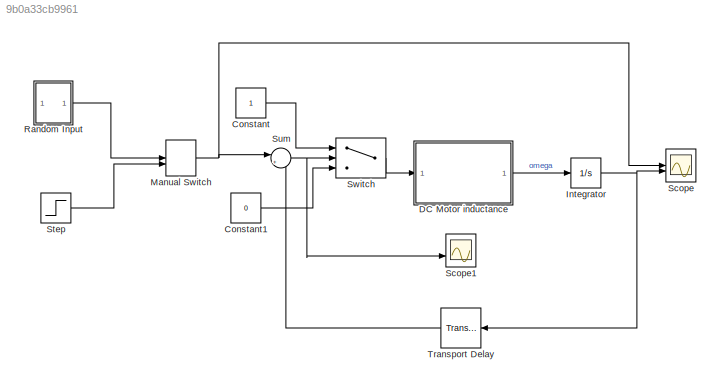
MODEL slx_9b0a33cb9961
KIND model
CONFIG AbsTol = auto
CONFIG EnableMultiTasking = off
CONFIG FixedStep = 0.1
CONFIG MaxStep = auto
CONFIG MinStep = auto
CONFIG RelTol = 1e-3
CONFIG SampleTimeConstraint = Unconstrained
CONFIG SolverName = FixedStepAuto
CONFIG StartTime = 0.0
CONFIG StopTime = 10
BLOCK [Constant] Constant
BLOCK [Constant] Constant1
  Value = 0
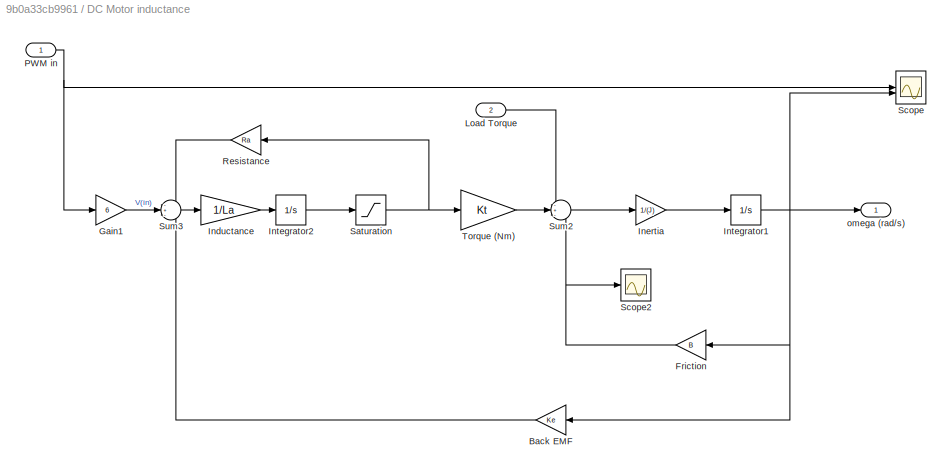
BLOCK [SubSystem] DC Motor inductance
BLOCK [Gain] DC Motor inductance/Back EMF
  Gain = Ke
  NameLocation = top
BLOCK [Gain] DC Motor inductance/Friction
  Gain = B
  NameLocation = top
BLOCK [Gain] DC Motor inductance/Gain1
  Gain = 6
BLOCK [Gain] DC Motor inductance/Inductance
  Gain = 1/La
BLOCK [Gain] DC Motor inductance/Inertia
  Gain = 1/(J)
BLOCK [Integrator] DC Motor inductance/Integrator1
BLOCK [Integrator] DC Motor inductance/Integrator2
BLOCK [Inport] DC Motor inductance/Load Torque
  Port = 2
BLOCK [Inport] DC Motor inductance/PWM in
BLOCK [Gain] DC Motor inductance/Resistance
  Gain = Ra
  NameLocation = top
BLOCK [Saturate] DC Motor inductance/Saturation
  LowerLimit = -1
  UpperLimit = 1
BLOCK [Scope] DC Motor inductance/Scope
  Floating = off
  NumInputPorts = 2
  ScopeSpecificationString = Simulink.scopes.TimeScopeBlockCfg('CurrentConfiguration', extmgr.ConfigurationSet(extmgr.Configuration('Core','General UI',true),extmgr.Configuration('Core','Source UI',true),extmgr.Configuration('Sources','WiredSimulink',true,'DataLoggingVariableName','ScopeData1'),extmgr.Configuration('Visuals','Time Domain',true,'SerializedDisplays',{struct('MinYLimReal','-0.125','MaxYLimReal','1.125','YLabelRe...<+2251ch>
BLOCK [Scope] DC Motor inductance/Scope2
  Floating = off
  NumInputPorts = 1
  ScopeSpecificationString = Simulink.scopes.TimeScopeBlockCfg('CurrentConfiguration', extmgr.ConfigurationSet(extmgr.Configuration('Core','General UI',true),extmgr.Configuration('Core','Source UI',true),extmgr.Configuration('Sources','WiredSimulink',true,'DataLoggingVariableName','ScopeData1'),extmgr.Configuration('Visuals','Time Domain',true,'SerializedDisplays',{struct('MinYLimReal','-0.00187','MaxYLimReal','0.01682','YLab...<+1544ch>
BLOCK [Sum] DC Motor inductance/Sum2
  Inputs = -+-
BLOCK [Sum] DC Motor inductance/Sum3
  Inputs = -+-
BLOCK [Gain] DC Motor inductance/Torque (Nm)
  Gain = Kt
BLOCK [Outport] DC Motor inductance/omega (rad//s)
BLOCK [Integrator] Integrator
BLOCK [ManualSwitch] Manual Switch
  CurrentSetting = 0
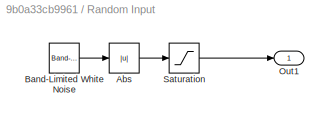
BLOCK [SubSystem] Random Input
BLOCK [Abs] Random Input/Abs
  SaturateOnIntegerOverflow = off
BLOCK [Reference] Random Input/Band-Limited White Noise  REF=simulink/Sources/Band-Limited
White Noise
  SourceBlock = simulink/Sources/Band-Limited\nWhite Noise
  SourceType = Band-Limited White Noise.
BLOCK [Outport] Random Input/Out1
BLOCK [Saturate] Random Input/Saturation
  LowerLimit = 0
  UpperLimit = 350
BLOCK [Scope] Scope
  Floating = off
  NumInputPorts = 2
  ScopeSpecificationString = Simulink.scopes.TimeScopeBlockCfg('CurrentConfiguration', extmgr.ConfigurationSet(extmgr.Configuration('Core','General UI',true),extmgr.Configuration('Core','Source UI',true),extmgr.Configuration('Sources','WiredSimulink',true,'DataLoggingVariableName','ScopeData1'),extmgr.Configuration('Visuals','Time Domain',true,'SerializedDisplays',{struct('MinYLimReal','-54812222175490685944861856718739052732...<+3959ch>
BLOCK [Scope] Scope1
  Floating = off
  NumInputPorts = 2
  ScopeSpecificationString = Simulink.scopes.TimeScopeBlockCfg('CurrentConfiguration', extmgr.ConfigurationSet(extmgr.Configuration('Core','General UI',true),extmgr.Configuration('Core','Source UI',true),extmgr.Configuration('Sources','WiredSimulink',true,'DataLoggingVariableName','ScopeData2'),extmgr.Configuration('Visuals','Time Domain',true,'SerializedDisplays',{struct('MinYLimReal','-0.125','MaxYLimReal','1.125','YLabelRe...<+2275ch>
BLOCK [Step] Step
  After = 1000
  SampleTime = 0
BLOCK [Sum] Sum
  Inputs = |+-
BLOCK [Switch] Switch
  Criteria = u2 > Threshold
  InputSameDT = off
  SaturateOnIntegerOverflow = off
BLOCK [TransportDelay] Transport Delay
  Commented = through
  DelayTime = 0.01
  NameLocation = top
LINE Constant1:1 -> Switch:3
LINE Constant:1 -> Switch:1
LINE DC Motor inductance/Back EMF:1 -> DC Motor inductance/Sum3:3
NET DC Motor inductance/Friction:1 -> DC Motor inductance/Scope2:1, DC Motor inductance/Sum2:3
LINE DC Motor inductance/Gain1:1 -> DC Motor inductance/Sum3:2
LINE DC Motor inductance/Inductance:1 -> DC Motor inductance/Integrator2:1
LINE DC Motor inductance/Inertia:1 -> DC Motor inductance/Integrator1:1
NET DC Motor inductance/Integrator1:1 -> DC Motor inductance/Back EMF:1, DC Motor inductance/Friction:1, DC Motor inductance/Scope:2, DC Motor inductance/omega (rad//s):1
LINE DC Motor inductance/Integrator2:1 -> DC Motor inductance/Saturation:1
LINE DC Motor inductance/Load Torque:1 -> DC Motor inductance/Sum2:1
NET DC Motor inductance/PWM in:1 -> DC Motor inductance/Gain1:1, DC Motor inductance/Scope:1
LINE DC Motor inductance/Resistance:1 -> DC Motor inductance/Sum3:1
NET DC Motor inductance/Saturation:1 -> DC Motor inductance/Resistance:1, DC Motor inductance/Torque (Nm):1
LINE DC Motor inductance/Sum2:1 -> DC Motor inductance/Inertia:1
LINE DC Motor inductance/Sum3:1 -> DC Motor inductance/Inductance:1
LINE DC Motor inductance/Torque (Nm):1 -> DC Motor inductance/Sum2:2
LINE DC Motor inductance:1 -> Integrator:1
NET Integrator:1 -> Scope:2, Transport Delay:1
NET Manual Switch:1 -> Scope:1, Sum:1
LINE Random Input/Abs:1 -> Random Input/Saturation:1
LINE Random Input/Band-Limited White Noise:1 -> Random Input/Abs:1
LINE Random Input/Saturation:1 -> Random Input/Out1:1
LINE Random Input:1 -> Manual Switch:1
LINE Step:1 -> Manual Switch:2
NET Sum:1 -> Scope1:2, Switch:2
LINE Switch:1 -> DC Motor inductance:1
LINE Transport Delay:1 -> Sum:2
note: NET lines group one-source signal fan-out (src -> all destinations, sorted); 1:1 wires keep LINE
